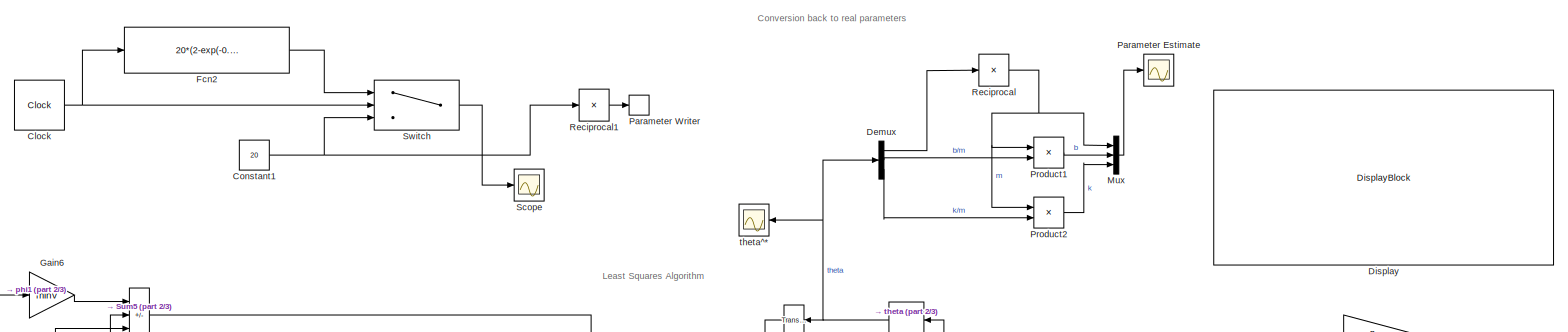
[diagram: root canvas - part 1/3, full width, top band]
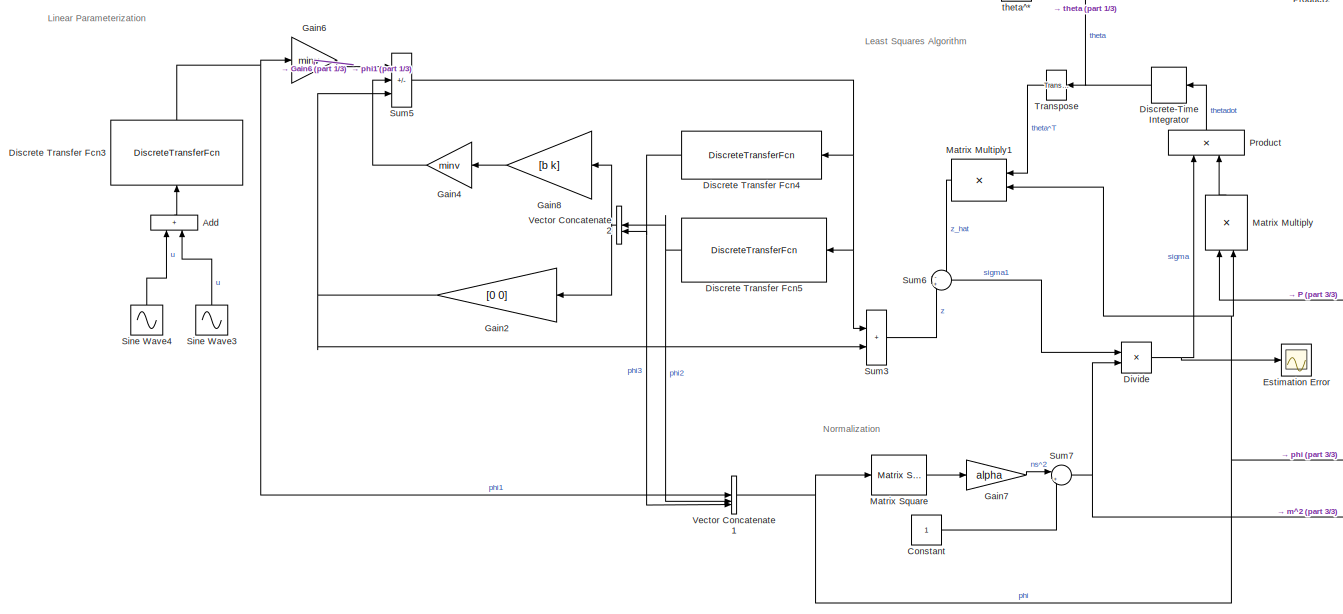
[diagram: root canvas - part 2/3, central region]
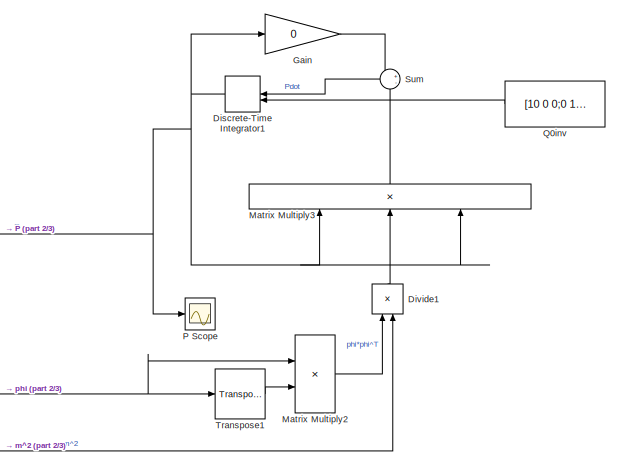
[diagram: root canvas - part 3/3, middle right region]
MODEL slx_9d044eabdb93
KIND model
CONFIG AbsTol = auto
CONFIG EnableMultiTasking = off
CONFIG FixedStep = auto
CONFIG MaxStep = auto
CONFIG MinStep = auto
CONFIG RelTol = 1e-3
CONFIG SampleTimeConstraint = Unconstrained
CONFIG SolverName = VariableStepAuto
CONFIG StartTime = 0.0
CONFIG StopTime = 100
WORKSPACE source: mxarray member
WORKSPACE alpha: Simulink.Parameter (value not decoded)
WORKSPACE b: Simulink.Parameter (value not decoded)
WORKSPACE beta: Simulink.Parameter (value not decoded)
WORKSPACE k: Simulink.Parameter (value not decoded)
WORKSPACE m: Simulink.Parameter (value not decoded)
WORKSPACE minv: Simulink.Parameter (value not decoded)
BLOCK [Sum] Add
  IconShape = rectangular
  NameLocation = right
BLOCK [Clock] Clock
  DisplayTime = on
BLOCK [Constant] Constant
BLOCK [Constant] Constant1
  Value = 20
BLOCK [Demux] Demux
  Outputs = 3
BLOCK [DiscreteTransferFcn] Discrete Transfer Fcn3
  Denominator = [1 -1.482 0.5488]
  InputPortMap = u0
  NameLocation = right
  Numerator = [0.004104 0.00336]
BLOCK [DiscreteTransferFcn] Discrete Transfer Fcn4
  Denominator = [1 -1.482 0.5488]
  InputPortMap = u0
  NameLocation = top
  Numerator = [-0.004104 -0.00336]
BLOCK [DiscreteTransferFcn] Discrete Transfer Fcn5
  Denominator = [1 -1.482 0.5488]
  InputPortMap = u0
  NameLocation = top
  Numerator = [-0.07408 0.07408]
BLOCK [DiscreteIntegrator] Discrete-Time Integrator
  ICPrevOutput = DiscIntNeverNeededParam
  ICPrevScaledInput = DiscIntNeverNeededParam
  InitialCondition = [0.1 0.1 0.1]
  InitialConditionSetting = Auto
  SampleTime = -1
BLOCK [DiscreteIntegrator] Discrete-Time Integrator1
  ICPrevOutput = DiscIntNeverNeededParam
  ICPrevScaledInput = DiscIntNeverNeededParam
  InitialCondition = [0.1 0.1 0.1]
  InitialConditionSetting = Auto
  InitialConditionSource = external
  SampleTime = -1
BLOCK [DisplayBlock] Display
  LabelPosition = Bottom
  Transparency = 1
BLOCK [Product] Divide
  Inputs = */
BLOCK [Product] Divide1
  Inputs = */
  NameLocation = right
BLOCK [Scope] Estimation Error
  Floating = off
  NumInputPorts = 1
  ScopeSpecificationString = Simulink.scopes.TimeScopeBlockCfg('CurrentConfiguration', extmgr.ConfigurationSet(extmgr.Configuration('Core','General UI',true),extmgr.Configuration('Core','Source UI',true),extmgr.Configuration('Sources','WiredSimulink',true,'DataLoggingVariableName','ScopeData3'),extmgr.Configuration('Visuals','Time Domain',true,'SerializedDisplays',{struct('MinYLimReal','-19243535690515916848482664586276281504...<+2632ch>
BLOCK [Fcn] Fcn2
  Expr = 20*(2-exp(-0.01*(u-20)))
BLOCK [Gain] Gain
  Gain = 0
BLOCK [Gain] Gain2
  Gain = [0 0]
  Multiplication = Matrix(K*u)
BLOCK [Gain] Gain4
  Gain = minv
BLOCK [Gain] Gain6
  Gain = minv
BLOCK [Gain] Gain7
  Gain = alpha
BLOCK [Gain] Gain8
  Gain = [b k]
  Multiplication = Matrix(K*u)
BLOCK [Product] Matrix Multiply
  Multiplication = Matrix(*)
  NameLocation = right
BLOCK [Product] Matrix Multiply1
  Multiplication = Matrix(*)
BLOCK [Product] Matrix Multiply2
  Multiplication = Matrix(*)
BLOCK [Product] Matrix Multiply3
  Inputs = 3
  Multiplication = Matrix(*)
  NameLocation = right
BLOCK [Reference] Matrix Square  REF=matrix_library/Matrix
Square
  LibrarySourceBlock = simulink/Matrix\nOperations/Matrix\nSquare
  SourceBlock = matrix_library/Matrix\nSquare
  SourceType = Matrix Square
BLOCK [Mux] Mux
  DisplayOption = bar
  Inputs = 3
BLOCK [Scope] P Scope
  Floating = off
  NumInputPorts = 1
  ScopeSpecificationString = Simulink.scopes.TimeScopeBlockCfg('CurrentConfiguration', extmgr.ConfigurationSet(extmgr.Configuration('Core','General UI',true),extmgr.Configuration('Core','Source UI',true),extmgr.Configuration('Sources','WiredSimulink',true,'DataLoggingVariableName','ScopeData1'),extmgr.Configuration('Visuals','Time Domain',true,'SerializedDisplays',{struct('MinYLimReal','-14161525858860281607807047363741526357...<+2999ch>
BLOCK [Scope] Parameter Estimate
  Floating = off
  NumInputPorts = 1
  ScopeSpecificationString = Simulink.scopes.TimeScopeBlockCfg('CurrentConfiguration', extmgr.ConfigurationSet(extmgr.Configuration('Core','General UI',true),extmgr.Configuration('Core','Source UI',true),extmgr.Configuration('Sources','WiredSimulink',true,'DataLoggingVariableName','ScopeData2'),extmgr.Configuration('Visuals','Time Domain',true,'SerializedDisplays',{struct('MinYLimReal','-1.16866','MaxYLimReal','20.51798','YLa...<+1778ch>
BLOCK [ParameterWriter] Parameter Writer
  AccessWorkspaceVariable = on
  WorkspaceVariableName = minv
BLOCK [Product] Product
  NameLocation = left
BLOCK [Product] Product1
BLOCK [Product] Product2
BLOCK [Constant] Q0inv
  Value = [10 0 0;0 10 0; 0 0 10]
BLOCK [Product] Reciprocal
  Inputs = /
  OutMax = [10000]
BLOCK [Product] Reciprocal1
  Inputs = /
BLOCK [Scope] Scope
  Floating = off
  NumInputPorts = 1
  ScopeSpecificationString = Simulink.scopes.TimeScopeBlockCfg('CurrentConfiguration', extmgr.ConfigurationSet(extmgr.Configuration('Core','General UI',true),extmgr.Configuration('Core','Source UI',true),extmgr.Configuration('Sources','WiredSimulink',true,'DataLoggingVariableName','ScopeData1'),extmgr.Configuration('Visuals','Time Domain',true,'SerializedDisplays',{struct('MinYLimReal','18.62332','MaxYLimReal','32.3901','YLab...<+1396ch>
BLOCK [Sin] Sine Wave3
  Amplitude = 5
  Frequency = 0.5
  NameLocation = right
  SampleTime = 0.1
BLOCK [Sin] Sine Wave4
  Amplitude = 2
  Frequency = 2
  NameLocation = right
  SampleTime = 0.1
BLOCK [Sum] Sum
  Inputs = +-
BLOCK [Sum] Sum3
  IconShape = rectangular
BLOCK [Sum] Sum5
  IconShape = rectangular
  Inputs = ++-
BLOCK [Sum] Sum6
  Inputs = -+
BLOCK [Sum] Sum7
  Inputs = |++
BLOCK [Switch] Switch
  InputSameDT = off
  SaturateOnIntegerOverflow = off
  Threshold = 20
  ZeroCross = off
BLOCK [Reference] Transpose  REF=matrix_library/Transpose
  LibrarySourceBlock = simulink/Matrix\nOperations/Transpose
  SourceBlock = matrix_library/Transpose
  SourceType = Transpose
BLOCK [Reference] Transpose1  REF=matrix_library/Transpose
  LibrarySourceBlock = simulink/Matrix\nOperations/Transpose
  SourceBlock = matrix_library/Transpose
  SourceType = Transpose
BLOCK [Concatenate] Vector Concatenate1
  NumInputs = 3
BLOCK [Concatenate] Vector Concatenate2
BLOCK [Scope] theta^*
  Floating = off
  NumInputPorts = 1
  ScopeSpecificationString = Simulink.scopes.TimeScopeBlockCfg('CurrentConfiguration', extmgr.ConfigurationSet(extmgr.Configuration('Core','General UI',true),extmgr.Configuration('Core','Source UI',true),extmgr.Configuration('Sources','WiredSimulink',true,'DataLoggingVariableName','ScopeData4'),extmgr.Configuration('Visuals','Time Domain',true,'SerializedDisplays',{struct('MinYLimReal','0.04348','MaxYLimReal','0.10676','YLabe...<+1409ch>
ANNOTATION (root): Conversion back to real parameters
ANNOTATION (root): Least Squares Algorithm
ANNOTATION (root): Linear Parameterization
ANNOTATION (root): Normalization
LINE Add:1 -> Discrete Transfer Fcn3:1
NET Clock:1 -> Fcn2:1, Switch:2
NET Constant1:1 -> Reciprocal1:1, Switch:3
LINE Constant:1 -> Sum7:2
LINE Demux:1 -> Reciprocal:1
LINE Demux:2 -> Product1:2
LINE Demux:3 -> Product2:2
NET Discrete Transfer Fcn3:1 -> Gain6:1, Vector Concatenate1:1
NET Discrete Transfer Fcn4:1 -> Vector Concatenate1:3, Vector Concatenate2:2
NET Discrete Transfer Fcn5:1 -> Vector Concatenate1:2, Vector Concatenate2:1
NET Discrete-Time Integrator1:1 -> Gain:1, Matrix Multiply3:1, Matrix Multiply3:3, Matrix Multiply:1, P Scope:1
NET Discrete-Time Integrator:1 -> Demux:1, Transpose:1, theta^*:1
LINE Divide1:1 -> Matrix Multiply3:2
NET Divide:1 -> Estimation Error:1, Product:1
LINE Fcn2:1 -> Switch:1
NET Gain2:1 -> Sum3:2, Sum5:3
LINE Gain4:1 -> Sum5:2
LINE Gain6:1 -> Sum5:1
LINE Gain7:1 -> Sum7:1
LINE Gain8:1 -> Gain4:1
LINE Gain:1 -> Sum:1
LINE Matrix Multiply1:1 -> Sum6:1
LINE Matrix Multiply2:1 -> Divide1:1
LINE Matrix Multiply3:1 -> Sum:2
LINE Matrix Multiply:1 -> Product:2
LINE Matrix Square:1 -> Gain7:1
LINE Mux:1 -> Parameter Estimate:1
LINE Product1:1 -> Mux:2
LINE Product2:1 -> Mux:3
LINE Product:1 -> Discrete-Time Integrator:1
LINE Q0inv:1 -> Discrete-Time Integrator1:2
LINE Reciprocal1:1 -> Parameter Writer:1
NET Reciprocal:1 -> Mux:1, Product1:1, Product2:1
LINE Sine Wave3:1 -> Add:2
LINE Sine Wave4:1 -> Add:1
LINE Sum3:1 -> Sum6:2
NET Sum5:1 -> Discrete Transfer Fcn4:1, Discrete Transfer Fcn5:1, Sum3:1
LINE Sum6:1 -> Divide:1
NET Sum7:1 -> Divide1:2, Divide:2
LINE Sum:1 -> Discrete-Time Integrator1:1
LINE Switch:1 -> Scope:1
LINE Transpose1:1 -> Matrix Multiply2:2
LINE Transpose:1 -> Matrix Multiply1:1
NET Vector Concatenate1:1 -> Matrix Multiply1:2, Matrix Multiply2:1, Matrix Multiply:2, Matrix Square:1, Transpose1:1
NET Vector Concatenate2:1 -> Gain2:1, Gain8:1
note: NET lines group one-source signal fan-out (src -> all destinations, sorted); 1:1 wires keep LINE
